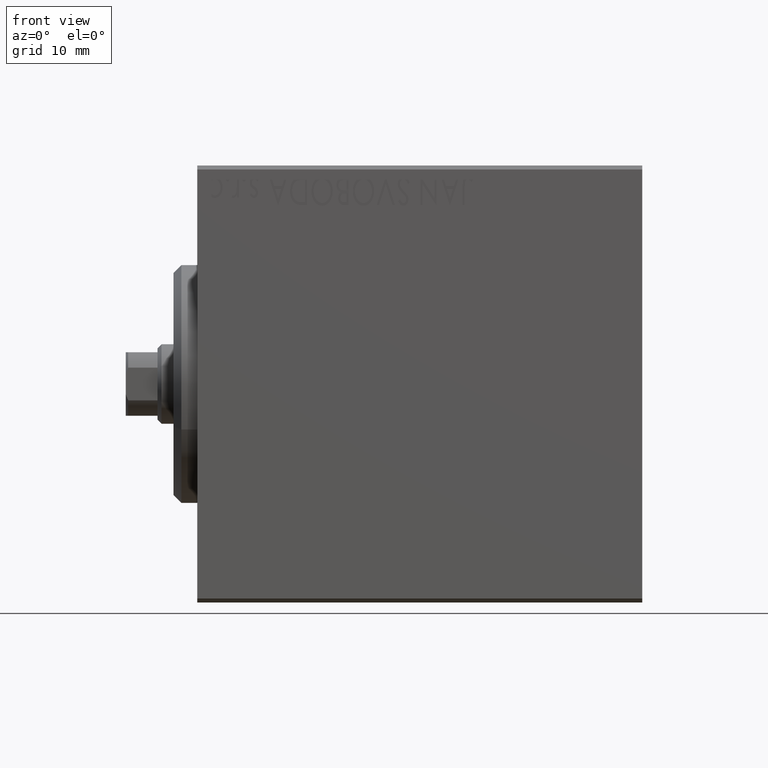
[diagram: clean part render]
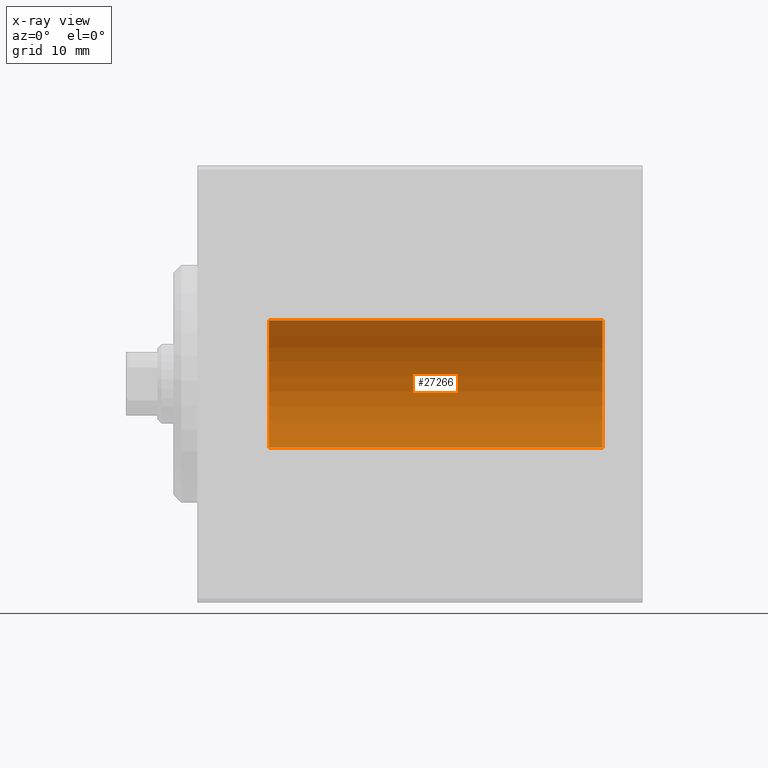
[diagram: x-ray — body ghosted, one internal face saturated and labeled with its STEP entity id]
A machine part, front view, then the same camera in x-ray: the body is ghosted and one INTERNAL B-rep face — a face not visible from any outside direction — is saturated and labeled: STEP entity #27266.
In plain terms, the highlighted cylindrical surface (partial cylindrical patch) has radius 8 mm, axis along (-1, -0, -0).
Its self-contained STEP definition (entity closure, byte-faithful):
#324 = VECTOR ( 'NONE', #13234, 1000.000000000000000 ) ;
#2536 = LINE ( 'NONE', #15236, #17428 ) ;
#4019 = VERTEX_POINT ( 'NONE', #22681 ) ;
#5338 = AXIS2_PLACEMENT_3D ( 'NONE', #28690, #32456, #5849 ) ;
#5582 = EDGE_CURVE ( 'NONE', #27176, #4019, #37148, .T. ) ;
#5658 = CARTESIAN_POINT ( 'NONE',  ( 51.00000000000000000, 9.797174393178823685E-16, -7.999999999999998224 ) ) ;
#5849 = DIRECTION ( 'NONE',  ( 0.000000000000000000, 0.000000000000000000, 1.000000000000000000 ) ) ;
#5911 = AXIS2_PLACEMENT_3D ( 'NONE', #29016, #42286, #12153 ) ;
#9813 = VERTEX_POINT ( 'NONE', #5658 ) ;
#12153 = DIRECTION ( 'NONE',  ( 0.000000000000000000, 0.000000000000000000, 1.000000000000000000 ) ) ;
#12446 = EDGE_CURVE ( 'NONE', #27176, #9813, #28808, .T. ) ;
#13234 = DIRECTION ( 'NONE',  ( -1.000000000000000000, -0.000000000000000000, -0.000000000000000000 ) ) ;
#15236 = CARTESIAN_POINT ( 'NONE',  ( 51.00000000000000000, 9.797174393178823685E-16, -7.999999999999998224 ) ) ;
#15326 = VERTEX_POINT ( 'NONE', #23957 ) ;
#17428 = VECTOR ( 'NONE', #39542, 1000.000000000000000 ) ;
#21137 = ORIENTED_EDGE ( 'NONE', *, *, #5582, .T. ) ;
#21587 = EDGE_CURVE ( 'NONE', #4019, #15326, #38451, .T. ) ;
#22681 = CARTESIAN_POINT ( 'NONE',  ( 9.000000000000001776, 0.000000000000000000, 7.999999999999998224 ) ) ;
#23957 = CARTESIAN_POINT ( 'NONE',  ( 9.000000000000001776, 9.797174393178823685E-16, -7.999999999999998224 ) ) ;
#24717 = CARTESIAN_POINT ( 'NONE',  ( 51.00000000000000000, 0.000000000000000000, 7.999999999999998224 ) ) ;
#27176 = VERTEX_POINT ( 'NONE', #24717 ) ;
#27196 = CARTESIAN_POINT ( 'NONE',  ( 51.00000000000000000, 0.000000000000000000, 7.999999999999998224 ) ) ;
#27266 = ADVANCED_FACE ( 'NONE', ( #31147 ), #29346, .F. ) ;
#28690 = CARTESIAN_POINT ( 'NONE',  ( 51.00000000000000000, 0.000000000000000000, 0.000000000000000000 ) ) ;
#28808 = CIRCLE ( 'NONE', #33761, 7.999999999999998224 ) ;
#29015 = EDGE_CURVE ( 'NONE', #9813, #15326, #2536, .T. ) ;
#29016 = CARTESIAN_POINT ( 'NONE',  ( 9.000000000000001776, 0.000000000000000000, 0.000000000000000000 ) ) ;
#29346 = CYLINDRICAL_SURFACE ( 'NONE', #5338, 7.999999999999998224 ) ;
#31147 = FACE_OUTER_BOUND ( 'NONE', #36590, .T. ) ;
#32101 = CARTESIAN_POINT ( 'NONE',  ( 51.00000000000000000, 0.000000000000000000, 0.000000000000000000 ) ) ;
#32326 = DIRECTION ( 'NONE',  ( 0.000000000000000000, 0.000000000000000000, 1.000000000000000000 ) ) ;
#32456 = DIRECTION ( 'NONE',  ( -1.000000000000000000, -0.000000000000000000, -0.000000000000000000 ) ) ;
#33761 = AXIS2_PLACEMENT_3D ( 'NONE', #32101, #38964, #32326 ) ;
#36590 = EDGE_LOOP ( 'NONE', ( #40688, #43604, #21137, #42134 ) ) ;
#37148 = LINE ( 'NONE', #27196, #324 ) ;
#38451 = CIRCLE ( 'NONE', #5911, 7.999999999999998224 ) ;
#38964 = DIRECTION ( 'NONE',  ( -1.000000000000000000, 0.000000000000000000, 0.000000000000000000 ) ) ;
#39542 = DIRECTION ( 'NONE',  ( -1.000000000000000000, -0.000000000000000000, -0.000000000000000000 ) ) ;
#40688 = ORIENTED_EDGE ( 'NONE', *, *, #29015, .F. ) ;
#42134 = ORIENTED_EDGE ( 'NONE', *, *, #21587, .T. ) ;
#42286 = DIRECTION ( 'NONE',  ( -1.000000000000000000, 0.000000000000000000, 0.000000000000000000 ) ) ;
#43604 = ORIENTED_EDGE ( 'NONE', *, *, #12446, .F. ) ;